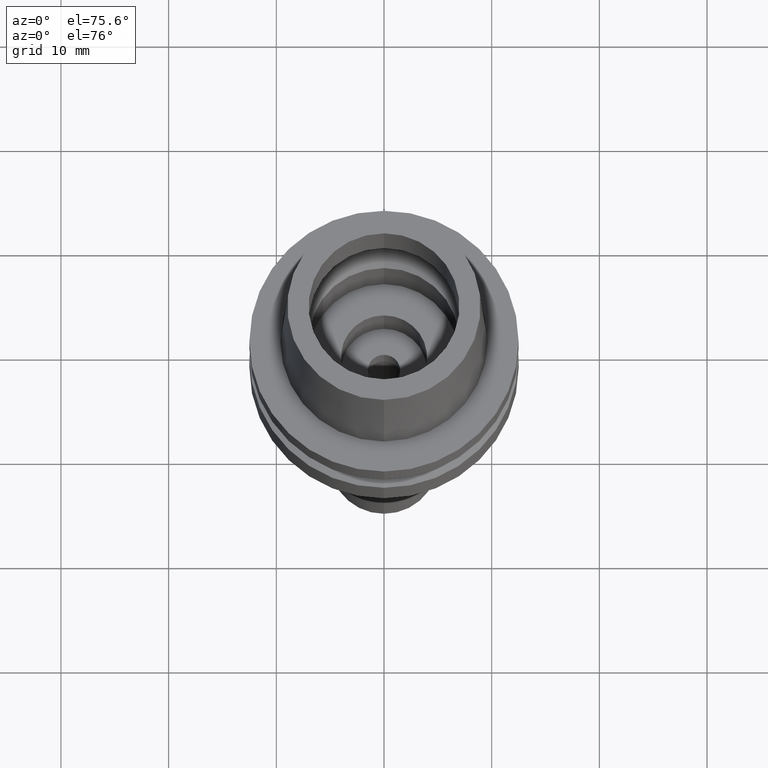
[diagram: clean part render]
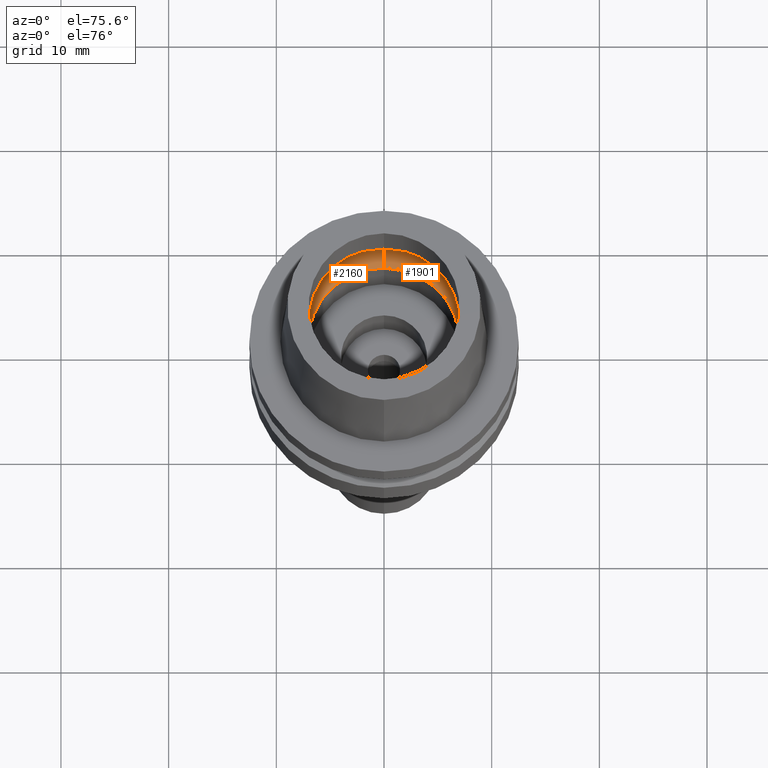
[diagram: same view with one multi-face feature highlighted, each face labeled with its STEP entity id]
A machine part, auxiliary view. The highlighted faces form ONE feature: a constant-radius fillet chain: 2 tangent blend faces with common blend radius 3 mm. The faces share edges in the B-rep.
Their STEP definitions:
[1] entity #2160 (Torus):
#28 = CIRCLE ( 'NONE', #1568, 3.000000000000000000 ) ;
#162 = AXIS2_PLACEMENT_3D ( 'NONE', #816, #350, #2259 ) ;
#306 = DIRECTION ( 'NONE',  ( 0.0000000000000000000, 0.0000000000000000000, -1.000000000000000000 ) ) ;
#310 = EDGE_CURVE ( 'NONE', #1615, #877, #28, .T. ) ;
#334 = CARTESIAN_POINT ( 'NONE',  ( 0.0000000000000000000, 5.200000000000000178, 2.449999999999999734 ) ) ;
#350 = DIRECTION ( 'NONE',  ( 0.0000000000000000000, 0.0000000000000000000, 1.000000000000000000 ) ) ;
#376 = FACE_OUTER_BOUND ( 'NONE', #915, .T. ) ;
#421 = EDGE_CURVE ( 'NONE', #2099, #877, #2220, .T. ) ;
#425 = CIRCLE ( 'NONE', #162, 7.000000000000000000 ) ;
#434 = AXIS2_PLACEMENT_3D ( 'NONE', #1878, #1450, #2080 ) ;
#565 = DIRECTION ( 'NONE',  ( 0.0000000000000000000, -1.000000000000000000, 0.0000000000000000000 ) ) ;
#597 = CARTESIAN_POINT ( 'NONE',  ( 0.0000000000000000000, 8.200000000000001066, 2.449999999999999734 ) ) ;
#786 = DIRECTION ( 'NONE',  ( 0.0000000000000000000, 0.5999999999999998668, -0.8000000000000001554 ) ) ;
#816 = CARTESIAN_POINT ( 'NONE',  ( 0.0000000000000000000, 0.0000000000000000000, 0.05000000000002000067 ) ) ;
#877 = VERTEX_POINT ( 'NONE', #597 ) ;
#915 = EDGE_LOOP ( 'NONE', ( #1015, #1678, #1749, #1823 ) ) ;
#1015 = ORIENTED_EDGE ( 'NONE', *, *, #421, .F. ) ;
#1021 = CARTESIAN_POINT ( 'NONE',  ( 0.0000000000000000000, -5.200000000000000178, 2.449999999999999734 ) ) ;
#1275 = DIRECTION ( 'NONE',  ( -1.000000000000000000, 0.0000000000000000000, 0.0000000000000000000 ) ) ;
#1321 = EDGE_CURVE ( 'NONE', #1615, #2305, #425, .T. ) ;
#1450 = DIRECTION ( 'NONE',  ( 0.0000000000000000000, 0.0000000000000000000, 1.000000000000000000 ) ) ;
#1568 = AXIS2_PLACEMENT_3D ( 'NONE', #334, #1815, #786 ) ;
#1615 = VERTEX_POINT ( 'NONE', #1865 ) ;
#1626 = CIRCLE ( 'NONE', #1667, 3.000000000000000000 ) ;
#1667 = AXIS2_PLACEMENT_3D ( 'NONE', #1021, #1275, #2064 ) ;
#1678 = ORIENTED_EDGE ( 'NONE', *, *, #2121, .F. ) ;
#1749 = ORIENTED_EDGE ( 'NONE', *, *, #1321, .F. ) ;
#1815 = DIRECTION ( 'NONE',  ( 1.000000000000000000, 0.0000000000000000000, 0.0000000000000000000 ) ) ;
#1823 = ORIENTED_EDGE ( 'NONE', *, *, #310, .T. ) ;
#1862 = CARTESIAN_POINT ( 'NONE',  ( 0.0000000000000000000, -8.200000000000001066, 2.449999999999999734 ) ) ;
#1865 = CARTESIAN_POINT ( 'NONE',  ( 0.0000000000000000000, 7.000000000000000000, 0.05000000000002999961 ) ) ;
#1878 = CARTESIAN_POINT ( 'NONE',  ( 0.0000000000000000000, 0.0000000000000000000, 2.449999999999999734 ) ) ;
#2064 = DIRECTION ( 'NONE',  ( 0.0000000000000000000, -0.5999999999999998668, -0.8000000000000001554 ) ) ;
#2080 = DIRECTION ( 'NONE',  ( 0.0000000000000000000, 1.000000000000000000, 0.0000000000000000000 ) ) ;
#2099 = VERTEX_POINT ( 'NONE', #1862 ) ;
#2121 = EDGE_CURVE ( 'NONE', #2305, #2099, #1626, .T. ) ;
#2160 = ADVANCED_FACE ( 'NONE', ( #376 ), #2602, .F. ) ;
#2188 = CARTESIAN_POINT ( 'NONE',  ( 0.0000000000000000000, 0.0000000000000000000, 2.449999999999999734 ) ) ;
#2220 = CIRCLE ( 'NONE', #2371, 8.200000000000001066 ) ;
#2259 = DIRECTION ( 'NONE',  ( 0.0000000000000000000, 1.000000000000000000, 0.0000000000000000000 ) ) ;
#2305 = VERTEX_POINT ( 'NONE', #2429 ) ;
#2371 = AXIS2_PLACEMENT_3D ( 'NONE', #2188, #306, #565 ) ;
#2429 = CARTESIAN_POINT ( 'NONE',  ( 0.0000000000000000000, -7.000000000000000000, 0.05000000000002000067 ) ) ;
#2602 = TOROIDAL_SURFACE ( 'NONE', #434, 5.200000000000000178, 3.000000000000000000 ) ;
[2] entity #1901 (Torus):
#28 = CIRCLE ( 'NONE', #1568, 3.000000000000000000 ) ;
#189 = ORIENTED_EDGE ( 'NONE', *, *, #2121, .T. ) ;
#230 = EDGE_CURVE ( 'NONE', #877, #2099, #2051, .T. ) ;
#272 = DIRECTION ( 'NONE',  ( 0.0000000000000000000, 0.0000000000000000000, -1.000000000000000000 ) ) ;
#310 = EDGE_CURVE ( 'NONE', #1615, #877, #28, .T. ) ;
#325 = CARTESIAN_POINT ( 'NONE',  ( 0.0000000000000000000, 0.0000000000000000000, 2.449999999999999734 ) ) ;
#334 = CARTESIAN_POINT ( 'NONE',  ( 0.0000000000000000000, 5.200000000000000178, 2.449999999999999734 ) ) ;
#502 = EDGE_CURVE ( 'NONE', #2305, #1615, #1564, .T. ) ;
#597 = CARTESIAN_POINT ( 'NONE',  ( 0.0000000000000000000, 8.200000000000001066, 2.449999999999999734 ) ) ;
#786 = DIRECTION ( 'NONE',  ( 0.0000000000000000000, 0.5999999999999998668, -0.8000000000000001554 ) ) ;
#792 = AXIS2_PLACEMENT_3D ( 'NONE', #2154, #272, #1750 ) ;
#877 = VERTEX_POINT ( 'NONE', #597 ) ;
#903 = CARTESIAN_POINT ( 'NONE',  ( 0.0000000000000000000, 0.0000000000000000000, 0.05000000000002000067 ) ) ;
#1021 = CARTESIAN_POINT ( 'NONE',  ( 0.0000000000000000000, -5.200000000000000178, 2.449999999999999734 ) ) ;
#1275 = DIRECTION ( 'NONE',  ( -1.000000000000000000, 0.0000000000000000000, 0.0000000000000000000 ) ) ;
#1337 = DIRECTION ( 'NONE',  ( 0.0000000000000000000, 1.000000000000000000, 0.0000000000000000000 ) ) ;
#1394 = EDGE_LOOP ( 'NONE', ( #1883, #189, #2409, #2563 ) ) ;
#1445 = AXIS2_PLACEMENT_3D ( 'NONE', #903, #2513, #1728 ) ;
#1560 = FACE_OUTER_BOUND ( 'NONE', #1394, .T. ) ;
#1564 = CIRCLE ( 'NONE', #1445, 7.000000000000000000 ) ;
#1568 = AXIS2_PLACEMENT_3D ( 'NONE', #334, #1815, #786 ) ;
#1615 = VERTEX_POINT ( 'NONE', #1865 ) ;
#1626 = CIRCLE ( 'NONE', #1667, 3.000000000000000000 ) ;
#1667 = AXIS2_PLACEMENT_3D ( 'NONE', #1021, #1275, #2064 ) ;
#1728 = DIRECTION ( 'NONE',  ( 0.0000000000000000000, -1.000000000000000000, 0.0000000000000000000 ) ) ;
#1750 = DIRECTION ( 'NONE',  ( 0.0000000000000000000, 1.000000000000000000, 0.0000000000000000000 ) ) ;
#1815 = DIRECTION ( 'NONE',  ( 1.000000000000000000, 0.0000000000000000000, 0.0000000000000000000 ) ) ;
#1862 = CARTESIAN_POINT ( 'NONE',  ( 0.0000000000000000000, -8.200000000000001066, 2.449999999999999734 ) ) ;
#1865 = CARTESIAN_POINT ( 'NONE',  ( 0.0000000000000000000, 7.000000000000000000, 0.05000000000002999961 ) ) ;
#1883 = ORIENTED_EDGE ( 'NONE', *, *, #502, .F. ) ;
#1901 = ADVANCED_FACE ( 'NONE', ( #1560 ), #2005, .F. ) ;
#2005 = TOROIDAL_SURFACE ( 'NONE', #2689, 5.200000000000000178, 3.000000000000000000 ) ;
#2051 = CIRCLE ( 'NONE', #792, 8.200000000000001066 ) ;
#2064 = DIRECTION ( 'NONE',  ( 0.0000000000000000000, -0.5999999999999998668, -0.8000000000000001554 ) ) ;
#2099 = VERTEX_POINT ( 'NONE', #1862 ) ;
#2121 = EDGE_CURVE ( 'NONE', #2305, #2099, #1626, .T. ) ;
#2154 = CARTESIAN_POINT ( 'NONE',  ( 0.0000000000000000000, 0.0000000000000000000, 2.449999999999999734 ) ) ;
#2305 = VERTEX_POINT ( 'NONE', #2429 ) ;
#2409 = ORIENTED_EDGE ( 'NONE', *, *, #230, .F. ) ;
#2429 = CARTESIAN_POINT ( 'NONE',  ( 0.0000000000000000000, -7.000000000000000000, 0.05000000000002000067 ) ) ;
#2513 = DIRECTION ( 'NONE',  ( 0.0000000000000000000, 0.0000000000000000000, 1.000000000000000000 ) ) ;
#2563 = ORIENTED_EDGE ( 'NONE', *, *, #310, .F. ) ;
#2616 = DIRECTION ( 'NONE',  ( 0.0000000000000000000, 0.0000000000000000000, 1.000000000000000000 ) ) ;
#2689 = AXIS2_PLACEMENT_3D ( 'NONE', #325, #2616, #1337 ) ;